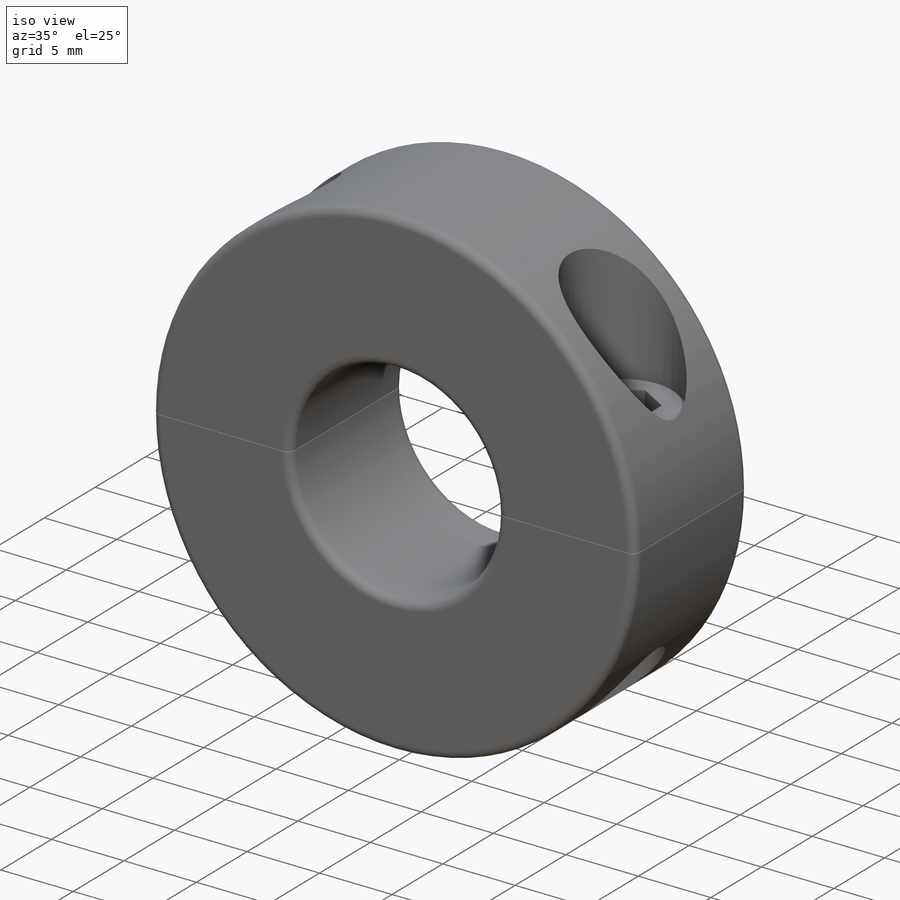
[diagram: iso view]
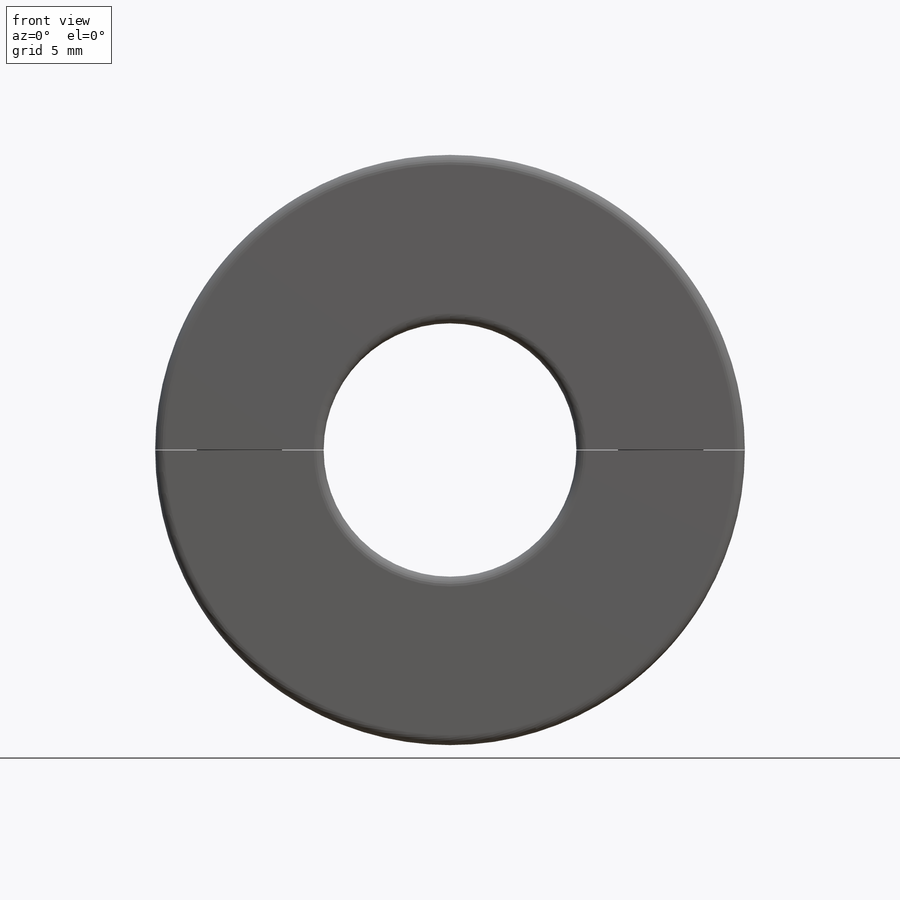
[diagram: front view]
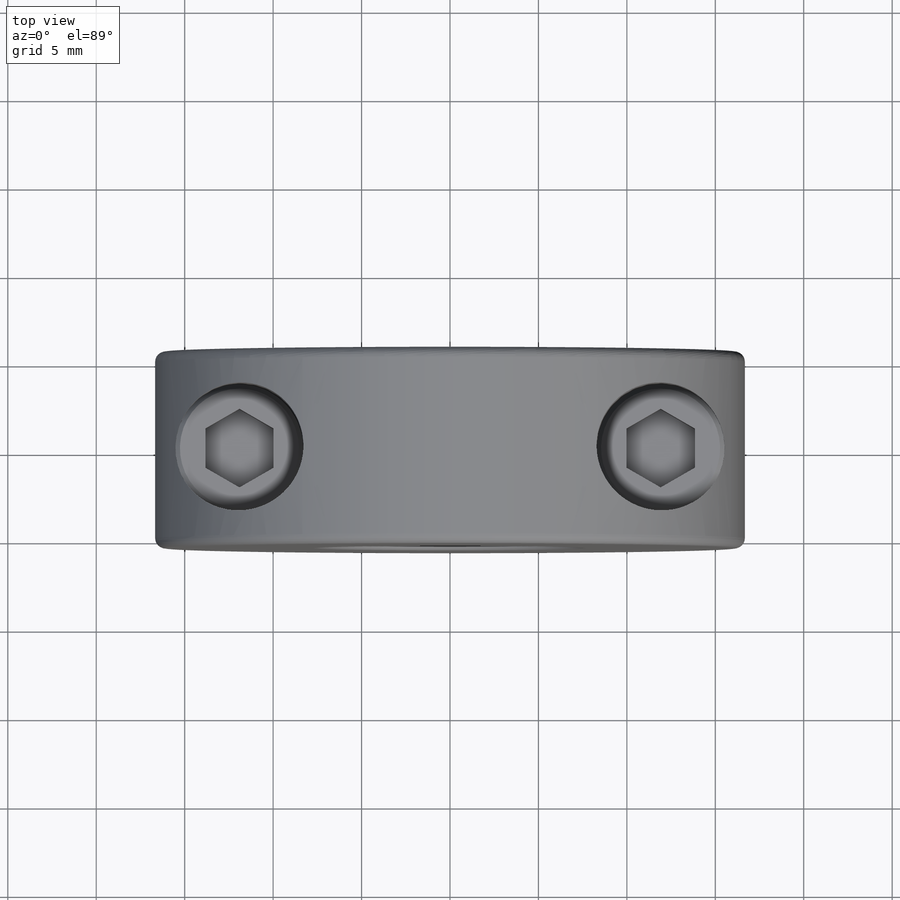
[diagram: top view]
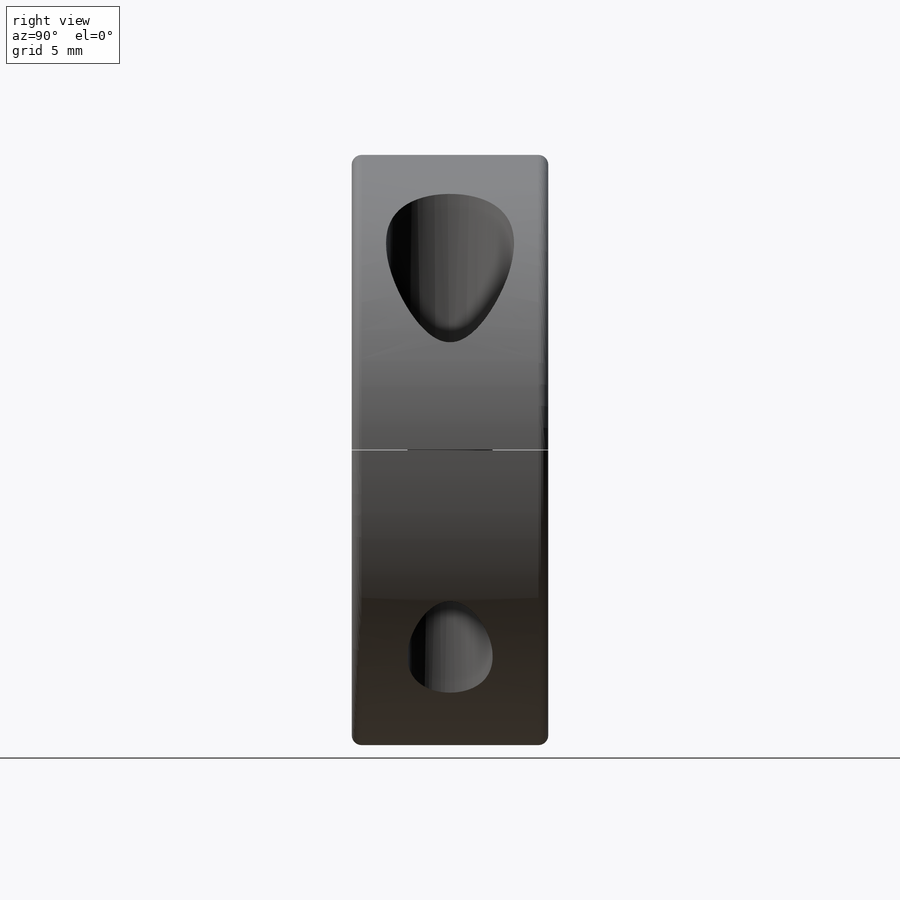
[diagram: right view]
SOLIDWORKS PART (.sldprt)
format: sldprt  version: not decoded by parser v0  size: 418,304 bytes
history: native  units: mm
features: sketch x4, mirror x2, fillet x2, chamfer x2, material x1, extrude x1, cut_revolve x1, revolve x1, cut_extrude x1 (+11 scaffold rows collapsed)
feature tree (26):
  scaffold x11  (default folders/planes/origin — collapsed)
  material  "Alloy Steel"
  sketch  "Sketch1"  dims[Bore Dia=14.2875mm OD=33.3375mm Separation=~0.033338mm]
  extrude  "Extrude1"  Depth=11.1125mm Width=11.1125mm
  sketch  "Sketch4"  dims[c1.Set Screw Dia=9.525mm c1.D1=9.525mm c1.D2=15.875mm c2.D1=4.826mm c2.D2=60.325mm c2.D3=1.27mm c3.D2=9.525mm c3.D4=7.239mm c3.D3=1.2065mm c3.Screw Dia=4.826mm c3.D5=2.54mm]
  cut_revolve  "Cut-Revolve1"  Angle=360deg
  sketch  "Sketch6"  dims[c1.Head Ht=~17.30375mm c1.D2=2.54mm c1.Screw Lg=14.478mm c2.Head Ht=4.826mm]
  revolve  "Revolve1"  Angle=360deg
  mirror  "Mirror1"
  sketch  "Sketch7"  dims[D1=3.8608mm]
  cut_extrude  "Cut-Extrude2"  Depth=2.413mm
  mirror  "Mirror2"
  fillet  "Fillet1"  Radius=0.555625mm
  fillet  "Fillet2"  Radius=0.555625mm
  chamfer  "Chamfer1"  Distance=0.254mm Angle=45deg
  chamfer  "Chamfer2"  Distance=0.254mm Angle=45deg
decode coverage: 12 of 14 modeling features carry decoded parameters
note: ~ marks probable driven/reference dimensions
note: suppression state not decoded; provenance and decode notes live in map.json
